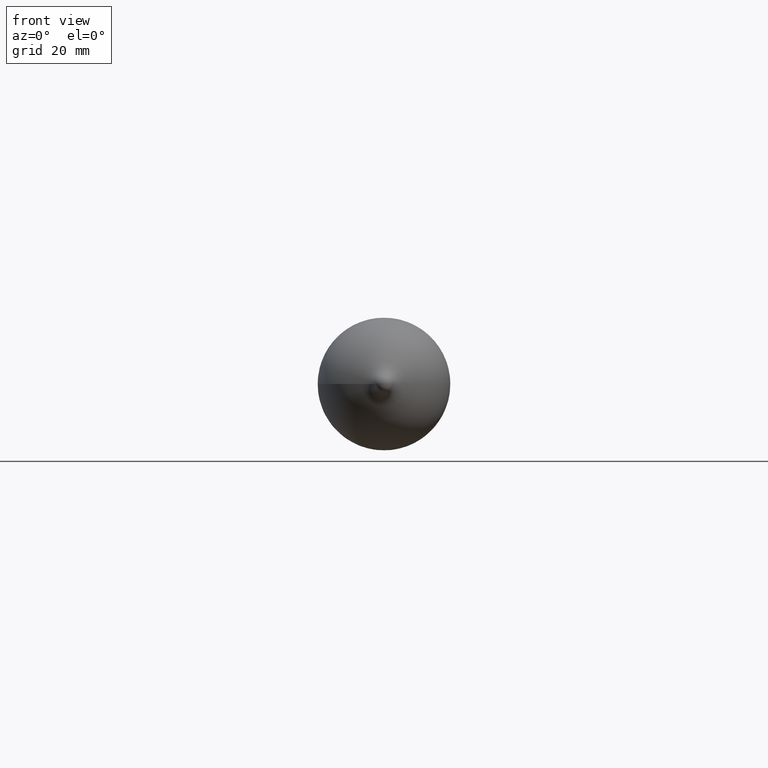
[diagram: clean part render]
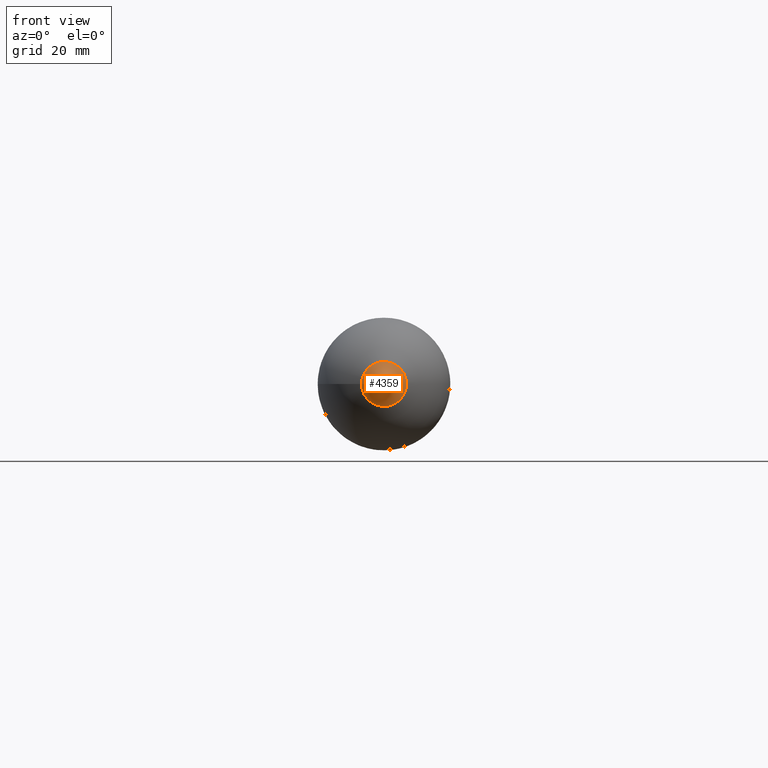
[diagram: same view with one face highlighted and labeled with its STEP entity id]
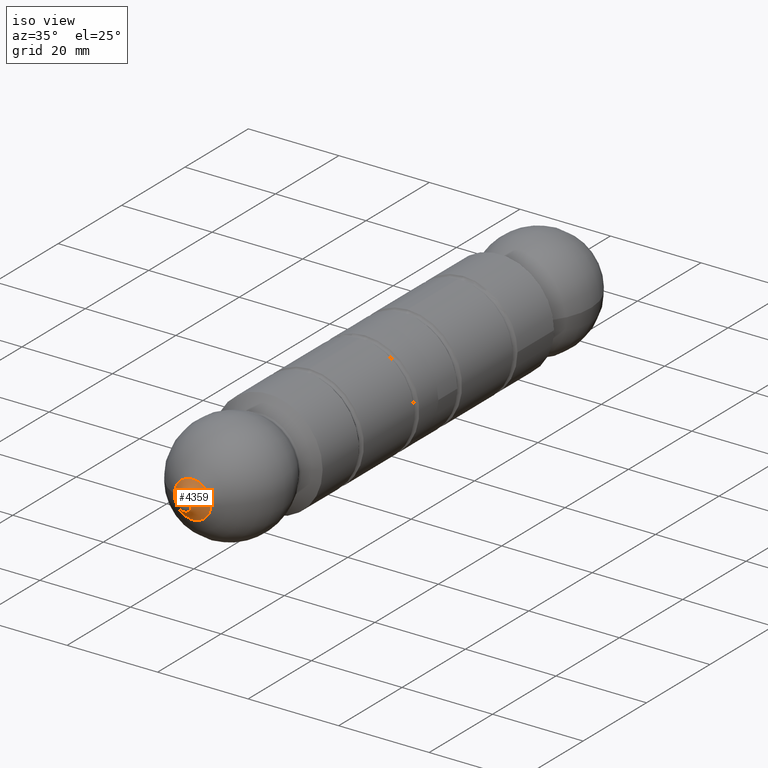
[diagram: same view with one face highlighted and labeled with its STEP entity id]
A machine part, front view. The second image highlights one B-rep face of the part: STEP entity #4359.
A second angle (iso view) of the same face is appended — the face is thin or edge-on in the first view.
In plain terms, the highlighted toroidal blend (fillet) surface has major radius 6.1154 mm and minor (blend) radius 5 mm.
Its self-contained STEP definition (entity closure, byte-faithful):
#454 = CARTESIAN_POINT ( 'NONE',  ( 1.479641749106801787E-15, -63.00000000000000000, 0.000000000000000000 ) ) ;
#948 = FACE_OUTER_BOUND ( 'NONE', #11875, .T. ) ;
#960 = CIRCLE ( 'NONE', #11220, 4.072785120239267975 ) ;
#1914 = ORIENTED_EDGE ( 'NONE', *, *, #4191, .T. ) ;
#2305 = CARTESIAN_POINT ( 'NONE',  ( -4.072785120239266199, -60.35932985488481961, 0.000000000000000000 ) ) ;
#2338 = EDGE_LOOP ( 'NONE', ( #1914 ) ) ;
#2878 = ORIENTED_EDGE ( 'NONE', *, *, #8840, .F. ) ;
#4191 = EDGE_CURVE ( 'NONE', #7686, #7686, #8868, .T. ) ;
#4359 = ADVANCED_FACE ( 'NONE', ( #948, #8729 ), #6671, .F. ) ;
#5269 = AXIS2_PLACEMENT_3D ( 'NONE', #8259, #5469, #11081 ) ;
#5469 = DIRECTION ( 'NONE',  ( -2.348637696994923334E-17, 1.000000000000000000, -0.000000000000000000 ) ) ;
#5931 = VERTEX_POINT ( 'NONE', #2305 ) ;
#6671 = TOROIDAL_SURFACE ( 'NONE', #5269, 6.115384615384614975, 4.999999999999997335 ) ;
#7686 = VERTEX_POINT ( 'NONE', #9751 ) ;
#8259 = CARTESIAN_POINT ( 'NONE',  ( 1.734723475976807094E-15, -64.92307692307691980, 0.000000000000000000 ) ) ;
#8297 = DIRECTION ( 'NONE',  ( -2.348637696994923334E-17, 1.000000000000000000, -0.000000000000000000 ) ) ;
#8729 = FACE_OUTER_BOUND ( 'NONE', #2338, .T. ) ;
#8840 = EDGE_CURVE ( 'NONE', #5931, #5931, #960, .T. ) ;
#8843 = DIRECTION ( 'NONE',  ( -2.348637696994923334E-17, 1.000000000000000000, -0.000000000000000000 ) ) ;
#8868 = CIRCLE ( 'NONE', #9136, 1.500000000000002220 ) ;
#9136 = AXIS2_PLACEMENT_3D ( 'NONE', #454, #8843, #10786 ) ;
#9165 = DIRECTION ( 'NONE',  ( -1.000000000000000000, 0.000000000000000000, 0.000000000000000000 ) ) ;
#9751 = CARTESIAN_POINT ( 'NONE',  ( -1.500000000000000666, -63.00000000000000000, 0.000000000000000000 ) ) ;
#10786 = DIRECTION ( 'NONE',  ( -1.000000000000000000, 0.000000000000000000, 0.000000000000000000 ) ) ;
#11081 = DIRECTION ( 'NONE',  ( -1.000000000000000000, -2.348637696994923334E-17, 0.000000000000000000 ) ) ;
#11120 = CARTESIAN_POINT ( 'NONE',  ( 1.417621974625336023E-15, -60.35932985488481961, 0.000000000000000000 ) ) ;
#11220 = AXIS2_PLACEMENT_3D ( 'NONE', #11120, #8297, #9165 ) ;
#11875 = EDGE_LOOP ( 'NONE', ( #2878 ) ) ;